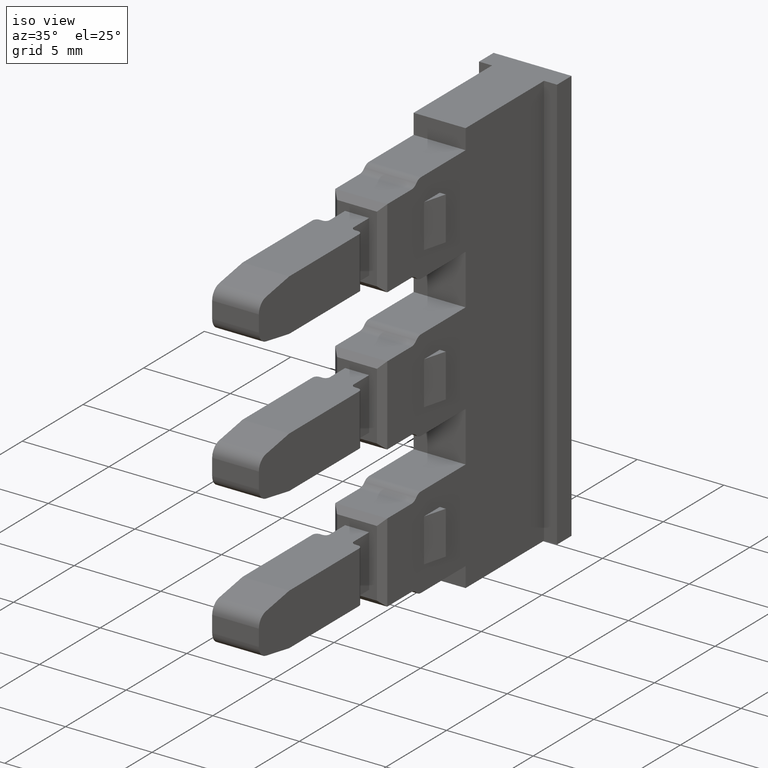
[diagram: clean part render]
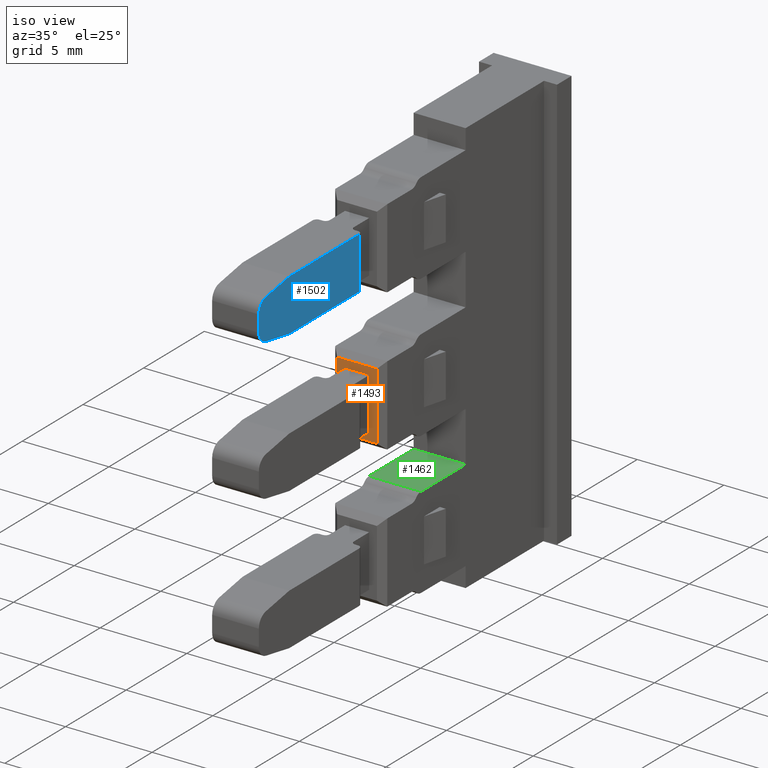
[diagram: same view with three faces highlighted in distinct colors, each labeled with its STEP entity id]
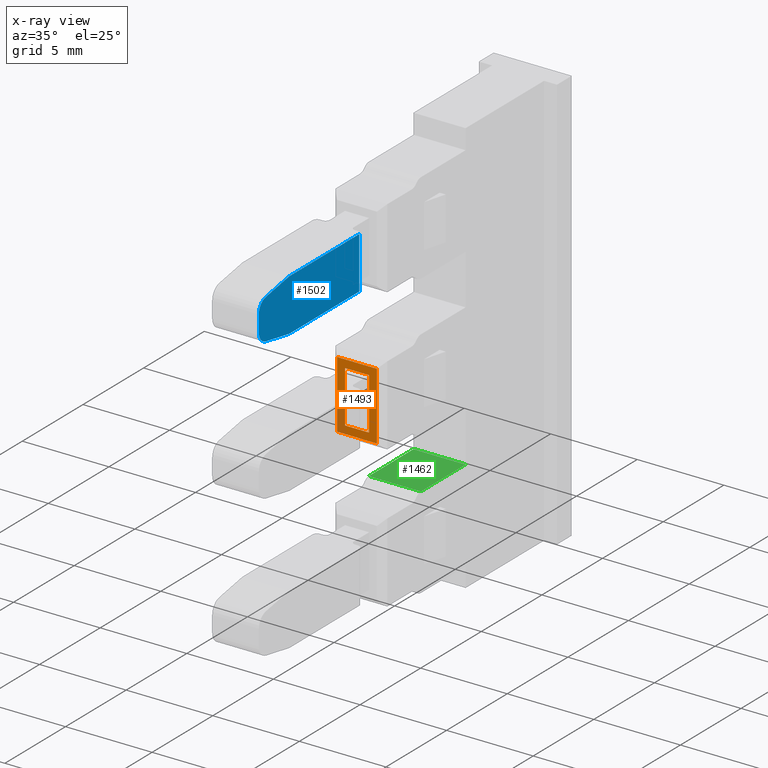
[diagram: x-ray of the same camera — body ghosted, the three highlighted faces saturated]
A machine part, iso view with three faces highlighted in distinct colors.
The next image is the same camera in x-ray (body ghosted, the three faces saturated) — at least one of them is partly hidden behind the body in this view.
Their STEP definitions:

[orange] entity #1493 — the highlighted planar face has unit normal (0, -1, 0).
#366 = FACE_OUTER_BOUND ( 'NONE', #1878, .T. ) ;
#399 = FACE_BOUND ( 'NONE', #1844, .T. ) ;
#414 = PLANE ( 'NONE',  #3147 ) ;
#429 = DIRECTION ( 'NONE',  ( 2.643655590711540000E-014, -1.000000000000000000, 1.799495001831193600E-028 ) ) ;
#443 = CARTESIAN_POINT ( 'NONE',  ( 113.0053559949201100, 245.8315789080020900, 157.5326569986724200 ) ) ;
#444 = DIRECTION ( 'NONE',  ( 1.000000000000000000, 2.643655590711540000E-014, 0.0000000000000000000 ) ) ;
#870 = CARTESIAN_POINT ( 'NONE',  ( 111.4452529172781000, 245.8315789080019700, 162.5398226793859400 ) ) ;
#873 = CARTESIAN_POINT ( 'NONE',  ( 109.5952529172791500, 245.8315789080020000, 162.9898226793864900 ) ) ;
#874 = CARTESIAN_POINT ( 'NONE',  ( 110.0552529172787500, 245.8315789080019200, 162.5398226793859400 ) ) ;
#933 = CARTESIAN_POINT ( 'NONE',  ( 111.8952529172789700, 245.8315789080020900, 159.0898226793860000 ) ) ;
#938 = CARTESIAN_POINT ( 'NONE',  ( 111.8952529172790000, 245.8315789080020300, 162.9898226793864900 ) ) ;
#958 = CARTESIAN_POINT ( 'NONE',  ( 111.4452529172783200, 245.8315789080020300, 159.5398226793864200 ) ) ;
#969 = CARTESIAN_POINT ( 'NONE',  ( 109.5952529172791700, 245.8315789080020000, 159.0898226793858900 ) ) ;
#973 = CARTESIAN_POINT ( 'NONE',  ( 110.0552529172788400, 245.8315789080020000, 159.5398226793860800 ) ) ;
#1243 = EDGE_CURVE ( 'NONE', #1774, #1728, #3342, .T. ) ;
#1265 = EDGE_CURVE ( 'NONE', #1778, #1758, #3401, .T. ) ;
#1274 = EDGE_CURVE ( 'NONE', #1754, #1829, #3478, .T. ) ;
#1282 = EDGE_CURVE ( 'NONE', #1728, #1754, #3461, .T. ) ;
#1289 = EDGE_CURVE ( 'NONE', #1779, #1777, #3511, .T. ) ;
#1291 = EDGE_CURVE ( 'NONE', #1778, #1777, #3503, .T. ) ;
#1358 = EDGE_CURVE ( 'NONE', #1758, #1779, #3686, .T. ) ;
#1365 = EDGE_CURVE ( 'NONE', #1829, #1774, #3739, .T. ) ;
#1493 = ADVANCED_FACE ( 'NONE', ( #399, #366 ), #414, .T. ) ;
#1728 = VERTEX_POINT ( 'NONE', #874 ) ;
#1754 = VERTEX_POINT ( 'NONE', #870 ) ;
#1758 = VERTEX_POINT ( 'NONE', #873 ) ;
#1774 = VERTEX_POINT ( 'NONE', #973 ) ;
#1777 = VERTEX_POINT ( 'NONE', #933 ) ;
#1778 = VERTEX_POINT ( 'NONE', #938 ) ;
#1779 = VERTEX_POINT ( 'NONE', #969 ) ;
#1829 = VERTEX_POINT ( 'NONE', #958 ) ;
#1844 = EDGE_LOOP ( 'NONE', ( #2150, #2165, #2177, #2166 ) ) ;
#1878 = EDGE_LOOP ( 'NONE', ( #2180, #2188, #2206, #2201 ) ) ;
#2150 = ORIENTED_EDGE ( 'NONE', *, *, #1282, .T. ) ;
#2165 = ORIENTED_EDGE ( 'NONE', *, *, #1274, .T. ) ;
#2166 = ORIENTED_EDGE ( 'NONE', *, *, #1243, .T. ) ;
#2177 = ORIENTED_EDGE ( 'NONE', *, *, #1365, .T. ) ;
#2180 = ORIENTED_EDGE ( 'NONE', *, *, #1358, .T. ) ;
#2188 = ORIENTED_EDGE ( 'NONE', *, *, #1289, .T. ) ;
#2201 = ORIENTED_EDGE ( 'NONE', *, *, #1265, .T. ) ;
#2206 = ORIENTED_EDGE ( 'NONE', *, *, #1291, .F. ) ;
#2834 = VECTOR ( 'NONE', #3345, 1000.000000000000000 ) ;
#2848 = VECTOR ( 'NONE', #3509, 1000.000000000000000 ) ;
#2861 = VECTOR ( 'NONE', #3404, 1000.000000000000000 ) ;
#2865 = VECTOR ( 'NONE', #3463, 1000.000000000000000 ) ;
#2906 = VECTOR ( 'NONE', #3494, 1000.000000000000000 ) ;
#2908 = VECTOR ( 'NONE', #3472, 1000.000000000000000 ) ;
#2983 = VECTOR ( 'NONE', #3711, 1000.000000000000000 ) ;
#3006 = VECTOR ( 'NONE', #3752, 1000.000000000000000 ) ;
#3147 = AXIS2_PLACEMENT_3D ( 'NONE', #443, #429, #444 ) ;
#3342 = LINE ( 'NONE', #3364, #2834 ) ;
#3345 = DIRECTION ( 'NONE',  ( -4.757245022048507700E-042, 1.799495001831193600E-028, 1.000000000000000000 ) ) ;
#3364 = CARTESIAN_POINT ( 'NONE',  ( 110.0552529172788400, 245.8315789080020000, 157.5326569986724200 ) ) ;
#3401 = LINE ( 'NONE', #3402, #2861 ) ;
#3402 = CARTESIAN_POINT ( 'NONE',  ( 113.0053559949201100, 245.8315789080020900, 162.9898226793864900 ) ) ;
#3404 = DIRECTION ( 'NONE',  ( -1.000000000000000000, -2.643655590711540000E-014, -0.0000000000000000000 ) ) ;
#3448 = CARTESIAN_POINT ( 'NONE',  ( 111.4452529172781000, 245.8315789080020600, 157.5326569986724200 ) ) ;
#3461 = LINE ( 'NONE', #3462, #2908 ) ;
#3462 = CARTESIAN_POINT ( 'NONE',  ( 110.0552529172780100, 245.8315789080019200, 162.5398226793859400 ) ) ;
#3463 = DIRECTION ( 'NONE',  ( 4.757245022048507700E-042, -1.799495001831193600E-028, -1.000000000000000000 ) ) ;
#3472 = DIRECTION ( 'NONE',  ( 1.000000000000000000, -1.082325581281608900E-028, 7.193572994223691600E-015 ) ) ;
#3478 = LINE ( 'NONE', #3448, #2865 ) ;
#3486 = CARTESIAN_POINT ( 'NONE',  ( 111.8952529172790200, 245.8315789080020300, 173.4398226793860500 ) ) ;
#3494 = DIRECTION ( 'NONE',  ( 1.000000000000000000, 1.681506445067182100E-014, 1.681506445066916400E-014 ) ) ;
#3503 = LINE ( 'NONE', #3486, #2848 ) ;
#3508 = CARTESIAN_POINT ( 'NONE',  ( 112.2452529172792000, 245.8315789080020600, 159.0898226793859500 ) ) ;
#3509 = DIRECTION ( 'NONE',  ( -3.520027763305564000E-015, 3.520027763305539100E-015, -1.000000000000000000 ) ) ;
#3511 = LINE ( 'NONE', #3508, #2906 ) ;
#3686 = LINE ( 'NONE', #3687, #3006 ) ;
#3687 = CARTESIAN_POINT ( 'NONE',  ( 109.5952529172791500, 245.8315789080020000, 157.5326569986724200 ) ) ;
#3711 = DIRECTION ( 'NONE',  ( -1.000000000000000000, -1.866616463170884400E-028, -7.193572994224770700E-015 ) ) ;
#3739 = LINE ( 'NONE', #3751, #2983 ) ;
#3751 = CARTESIAN_POINT ( 'NONE',  ( 110.0552529172780100, 245.8315789080020300, 159.5398226793860800 ) ) ;
#3752 = DIRECTION ( 'NONE',  ( 4.757245022048507700E-042, -1.799495001831193600E-028, -1.000000000000000000 ) ) ;

[blue] entity #1502 — the highlighted planar face has unit normal (-1, 0, -0).
#9 = DIRECTION ( 'NONE',  ( -3.544088213562557700E-014, -0.9848077530122284500, 0.1736481776668148100 ) ) ;
#15 = CARTESIAN_POINT ( 'NONE',  ( 112.0980534371292700, 235.8069065328611200, 168.7691701297482900 ) ) ;
#17 = DIRECTION ( 'NONE',  ( 1.030385130369684300E-041, -3.897577029284496700E-028, -1.000000000000000000 ) ) ;
#25 = LINE ( 'NONE', #26, #3038 ) ;
#26 = CARTESIAN_POINT ( 'NONE',  ( 112.0980534371293100, 238.3134866759716600, 167.7398226793861200 ) ) ;
#45 = LINE ( 'NONE', #15, #3052 ) ;
#56 = LINE ( 'NONE', #83, #3053 ) ;
#83 = CARTESIAN_POINT ( 'NONE',  ( 112.0980534371293100, 244.0815789080036500, 191.9089333087245000 ) ) ;
#92 = DIRECTION ( 'NONE',  ( 7.193572994222961100E-015, -5.441398086523228100E-029, -1.000000000000000000 ) ) ;
#423 = FACE_OUTER_BOUND ( 'NONE', #1849, .T. ) ;
#428 = PLANE ( 'NONE',  #3145 ) ;
#436 = CARTESIAN_POINT ( 'NONE',  ( 112.0980534371293400, 244.7827890380865500, 191.9089333087245000 ) ) ;
#437 = DIRECTION ( 'NONE',  ( -1.000000000000000000, 3.142629004551421700E-014, -7.193572994222961100E-015 ) ) ;
#438 = DIRECTION ( 'NONE',  ( -3.142629004551421700E-014, -1.000000000000000000, 0.0000000000000000000 ) ) ;
#907 = CARTESIAN_POINT ( 'NONE',  ( 112.0980534371294900, 244.0815789080036500, 167.7398226793860900 ) ) ;
#911 = CARTESIAN_POINT ( 'NONE',  ( 112.0980534371292700, 236.3853528084943300, 168.0798047026398800 ) ) ;
#931 = CARTESIAN_POINT ( 'NONE',  ( 112.0980534371292800, 238.3134866759713500, 170.7398226793860100 ) ) ;
#934 = CARTESIAN_POINT ( 'NONE',  ( 112.0980534371292700, 235.8069065328611200, 168.7691701297484000 ) ) ;
#936 = CARTESIAN_POINT ( 'NONE',  ( 112.0980534371292700, 235.8069065328611200, 169.7104752290237300 ) ) ;
#939 = CARTESIAN_POINT ( 'NONE',  ( 112.0980534371292500, 236.3853528084943900, 170.3998406561322300 ) ) ;
#954 = CARTESIAN_POINT ( 'NONE',  ( 112.0980534371293100, 238.3134866759712900, 167.7398226793862900 ) ) ;
#967 = CARTESIAN_POINT ( 'NONE',  ( 112.0980534371294700, 244.0815789080036500, 170.7398226793859200 ) ) ;
#1037 = DIRECTION ( 'NONE',  ( 2.835270570850548800E-014, 0.9848077530122330000, 0.1736481776667888900 ) ) ;
#1054 = LINE ( 'NONE', #1059, #2985 ) ;
#1059 = CARTESIAN_POINT ( 'NONE',  ( 112.0980534371292200, 236.3853528084944200, 170.3998406561322300 ) ) ;
#1351 = EDGE_CURVE ( 'NONE', #1720, #1792, #3669, .T. ) ;
#1362 = EDGE_CURVE ( 'NONE', #1731, #1790, #2991, .T. ) ;
#1372 = EDGE_CURVE ( 'NONE', #1815, #1807, #3720, .T. ) ;
#1373 = EDGE_CURVE ( 'NONE', #1812, #1806, #2994, .T. ) ;
#1398 = EDGE_CURVE ( 'NONE', #1806, #1815, #1054, .T. ) ;
#1411 = EDGE_CURVE ( 'NONE', #1792, #1731, #25, .T. ) ;
#1415 = EDGE_CURVE ( 'NONE', #1812, #1790, #45, .T. ) ;
#1422 = EDGE_CURVE ( 'NONE', #1807, #1720, #56, .T. ) ;
#1502 = ADVANCED_FACE ( 'NONE', ( #423 ), #428, .F. ) ;
#1720 = VERTEX_POINT ( 'NONE', #907 ) ;
#1731 = VERTEX_POINT ( 'NONE', #911 ) ;
#1790 = VERTEX_POINT ( 'NONE', #934 ) ;
#1792 = VERTEX_POINT ( 'NONE', #954 ) ;
#1806 = VERTEX_POINT ( 'NONE', #939 ) ;
#1807 = VERTEX_POINT ( 'NONE', #967 ) ;
#1812 = VERTEX_POINT ( 'NONE', #936 ) ;
#1815 = VERTEX_POINT ( 'NONE', #931 ) ;
#1849 = EDGE_LOOP ( 'NONE', ( #2309, #2333, #2278, #2322, #2304, #2282, #2295, #2336 ) ) ;
#2278 = ORIENTED_EDGE ( 'NONE', *, *, #1415, .T. ) ;
#2282 = ORIENTED_EDGE ( 'NONE', *, *, #1351, .F. ) ;
#2295 = ORIENTED_EDGE ( 'NONE', *, *, #1422, .F. ) ;
#2304 = ORIENTED_EDGE ( 'NONE', *, *, #1411, .F. ) ;
#2309 = ORIENTED_EDGE ( 'NONE', *, *, #1398, .F. ) ;
#2322 = ORIENTED_EDGE ( 'NONE', *, *, #1362, .F. ) ;
#2333 = ORIENTED_EDGE ( 'NONE', *, *, #1373, .F. ) ;
#2336 = ORIENTED_EDGE ( 'NONE', *, *, #1372, .F. ) ;
#2973 = AXIS2_PLACEMENT_3D ( 'NONE', #3750, #3734, #3744 ) ;
#2985 = VECTOR ( 'NONE', #1037, 1000.000000000000100 ) ;
#2987 = AXIS2_PLACEMENT_3D ( 'NONE', #3787, #3770, #3761 ) ;
#2989 = VECTOR ( 'NONE', #3702, 1000.000000000000000 ) ;
#2991 = CIRCLE ( 'NONE', #2973, 0.7000000000000061700 ) ;
#2994 = CIRCLE ( 'NONE', #2987, 0.7000000000000061700 ) ;
#3010 = VECTOR ( 'NONE', #3727, 1000.000000000000000 ) ;
#3038 = VECTOR ( 'NONE', #9, 1000.000000000000000 ) ;
#3052 = VECTOR ( 'NONE', #17, 1000.000000000000000 ) ;
#3053 = VECTOR ( 'NONE', #92, 1000.000000000000000 ) ;
#3145 = AXIS2_PLACEMENT_3D ( 'NONE', #436, #437, #438 ) ;
#3669 = LINE ( 'NONE', #3670, #2989 ) ;
#3670 = CARTESIAN_POINT ( 'NONE',  ( 112.0980534371295200, 244.7827890380865500, 167.7398226793860900 ) ) ;
#3702 = DIRECTION ( 'NONE',  ( -3.142629004551421700E-014, -1.000000000000000000, 0.0000000000000000000 ) ) ;
#3720 = LINE ( 'NONE', #3725, #3010 ) ;
#3725 = CARTESIAN_POINT ( 'NONE',  ( 112.0980534371294900, 244.7827890380865500, 170.7398226793859000 ) ) ;
#3727 = DIRECTION ( 'NONE',  ( 3.142629004551421700E-014, 1.000000000000000000, -0.0000000000000000000 ) ) ;
#3734 = DIRECTION ( 'NONE',  ( -1.000000000000000000, -2.643655590711542200E-014, -7.193572994224081300E-015 ) ) ;
#3744 = DIRECTION ( 'NONE',  ( -1.982541115402047700E-014, 1.000000000000000000, -3.965082230804095400E-014 ) ) ;
#3750 = CARTESIAN_POINT ( 'NONE',  ( 112.0980534371292500, 236.5069065328611400, 168.7691701297483700 ) ) ;
#3761 = DIRECTION ( 'NONE',  ( -1.982541115402047700E-014, 1.000000000000000000, 0.0000000000000000000 ) ) ;
#3770 = DIRECTION ( 'NONE',  ( -1.000000000000000000, -2.643655590711542200E-014, -7.193572994224081300E-015 ) ) ;
#3787 = CARTESIAN_POINT ( 'NONE',  ( 112.0980534371292500, 236.5069065328611400, 169.7104752290237000 ) ) ;

[green] entity #1462 — the highlighted planar face has unit normal (0, -0, -1).
#252 = DIRECTION ( 'NONE',  ( -1.000000000000000000, 0.0000000000000000000, -7.193572994224081300E-015 ) ) ;
#264 = FACE_OUTER_BOUND ( 'NONE', #1896, .T. ) ;
#265 = CARTESIAN_POINT ( 'NONE',  ( 112.2452529172789900, 252.6101602476014100, 155.4898226793859800 ) ) ;
#271 = DIRECTION ( 'NONE',  ( 7.193572994224081300E-015, -1.932210572784515100E-028, -1.000000000000000000 ) ) ;
#279 = PLANE ( 'NONE',  #3092 ) ;
#804 = CARTESIAN_POINT ( 'NONE',  ( 112.2452529172786900, 248.9601602476015200, 155.4898226793859800 ) ) ;
#841 = CARTESIAN_POINT ( 'NONE',  ( 109.2452529172786500, 252.6435672046369200, 155.4898226793859800 ) ) ;
#849 = CARTESIAN_POINT ( 'NONE',  ( 109.2452529172786900, 248.9601602476014900, 155.4898226793859800 ) ) ;
#856 = CARTESIAN_POINT ( 'NONE',  ( 112.2452529172785900, 252.6435672046369200, 155.4898226793859800 ) ) ;
#1143 = EDGE_CURVE ( 'NONE', #1648, #1637, #4021, .T. ) ;
#1200 = EDGE_CURVE ( 'NONE', #1637, #1687, #3236, .T. ) ;
#1262 = EDGE_CURVE ( 'NONE', #1687, #1665, #3410, .T. ) ;
#1280 = EDGE_CURVE ( 'NONE', #1665, #1648, #3452, .T. ) ;
#1462 = ADVANCED_FACE ( 'NONE', ( #264 ), #279, .F. ) ;
#1637 = VERTEX_POINT ( 'NONE', #841 ) ;
#1648 = VERTEX_POINT ( 'NONE', #849 ) ;
#1665 = VERTEX_POINT ( 'NONE', #804 ) ;
#1687 = VERTEX_POINT ( 'NONE', #856 ) ;
#1896 = EDGE_LOOP ( 'NONE', ( #1976, #2010, #2001, #1987 ) ) ;
#1976 = ORIENTED_EDGE ( 'NONE', *, *, #1200, .F. ) ;
#1987 = ORIENTED_EDGE ( 'NONE', *, *, #1262, .F. ) ;
#2001 = ORIENTED_EDGE ( 'NONE', *, *, #1280, .F. ) ;
#2010 = ORIENTED_EDGE ( 'NONE', *, *, #1143, .F. ) ;
#2744 = VECTOR ( 'NONE', #4011, 1000.000000000000000 ) ;
#2767 = VECTOR ( 'NONE', #3229, 1000.000000000000000 ) ;
#2877 = VECTOR ( 'NONE', #3419, 1000.000000000000000 ) ;
#2878 = VECTOR ( 'NONE', #3466, 1000.000000000000000 ) ;
#3092 = AXIS2_PLACEMENT_3D ( 'NONE', #265, #271, #252 ) ;
#3229 = DIRECTION ( 'NONE',  ( 1.000000000000000000, -0.0000000000000000000, 7.193572994224081300E-015 ) ) ;
#3236 = LINE ( 'NONE', #3248, #2767 ) ;
#3248 = CARTESIAN_POINT ( 'NONE',  ( 112.2452529172789900, 252.6435672046369200, 155.4898226793859800 ) ) ;
#3395 = CARTESIAN_POINT ( 'NONE',  ( 112.2452529172786800, 249.5101602476014500, 155.4898226793859800 ) ) ;
#3410 = LINE ( 'NONE', #3395, #2877 ) ;
#3419 = DIRECTION ( 'NONE',  ( 2.643655590711540000E-014, -1.000000000000000000, -0.0000000000000000000 ) ) ;
#3452 = LINE ( 'NONE', #3453, #2878 ) ;
#3453 = CARTESIAN_POINT ( 'NONE',  ( 112.2452529172789900, 248.9601602476015200, 155.4898226793859800 ) ) ;
#3466 = DIRECTION ( 'NONE',  ( -1.000000000000000000, 0.0000000000000000000, -7.193572994224081300E-015 ) ) ;
#4011 = DIRECTION ( 'NONE',  ( 1.389949779553693200E-042, 1.000000000000000000, -1.932210572784515100E-028 ) ) ;
#4021 = LINE ( 'NONE', #4029, #2744 ) ;
#4029 = CARTESIAN_POINT ( 'NONE',  ( 109.2452529172786900, 252.6101602476014100, 155.4898226793859800 ) ) ;